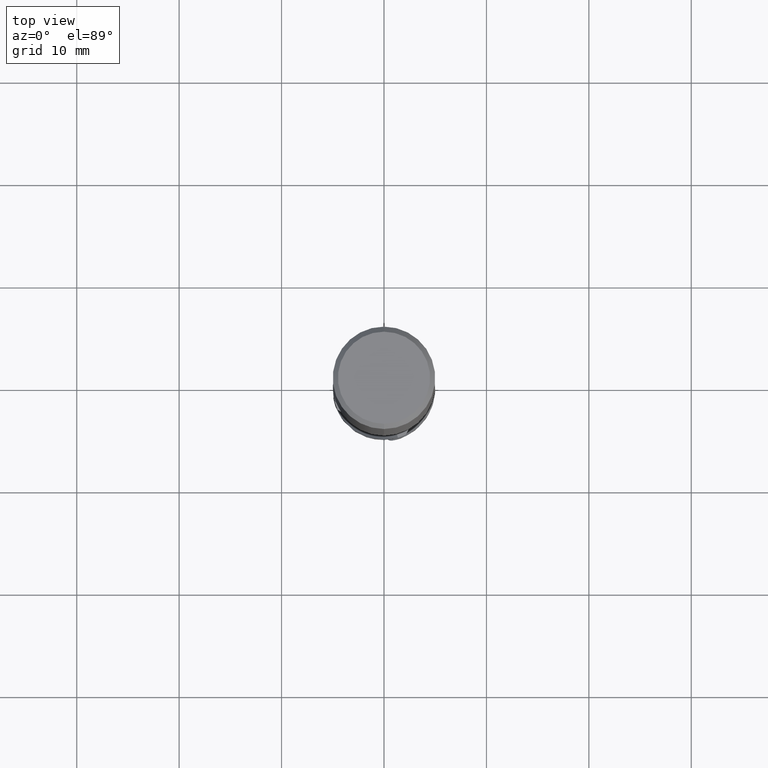
[diagram: clean part render]
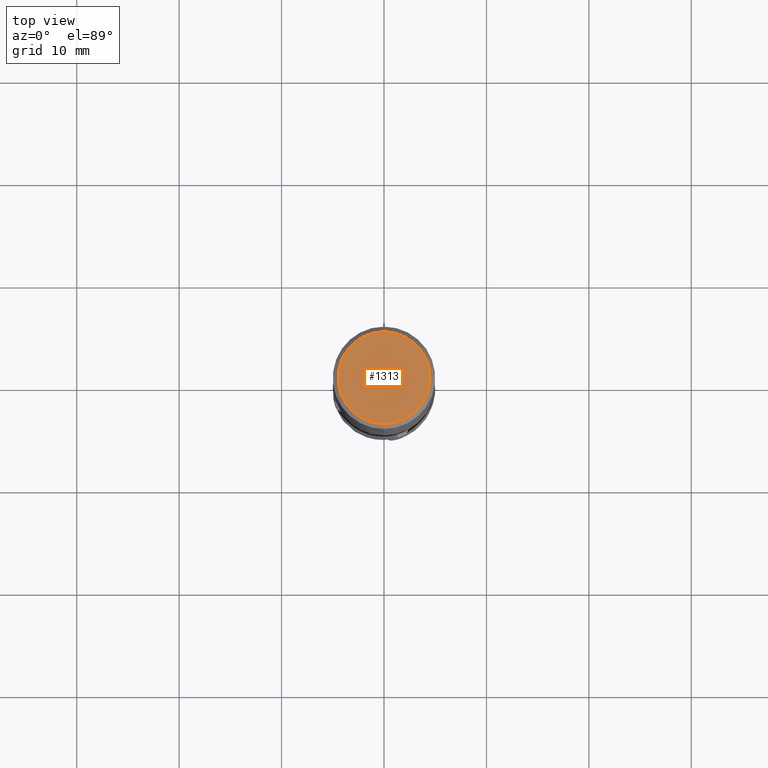
[diagram: same view with one face highlighted and labeled with its STEP entity id]
A machine part, top view. The second image highlights one B-rep face of the part: STEP entity #1313.
In plain terms, the highlighted planar face has unit normal (-0, 0, 1).
Its self-contained STEP definition (entity closure, byte-faithful):
#749=VERTEX_POINT('',#1751);
#833=EDGE_CURVE('',#749,#1059,#1845,.T.);
#1059=VERTEX_POINT('',#2093);
#1313=ADVANCED_FACE('',(#2362),#2363,.T.);
#1315=EDGE_CURVE('',#1059,#749,#2365,.T.);
#1751=CARTESIAN_POINT('',(5.5107285922007E-016,-4.5,0.0));
#1845=CIRCLE('',#4885,4.5);
#2093=CARTESIAN_POINT('',(0.0,4.5,0.0));
#2362=FACE_OUTER_BOUND('',#8147,.T.);
#2363=PLANE('',#8148);
#2365=CIRCLE('',#8151,4.5);
#4885=AXIS2_PLACEMENT_3D('',#9427,#9428,#9429);
#8147=EDGE_LOOP('',(#9878,#9879));
#8148=AXIS2_PLACEMENT_3D('',#9880,#9881,#9882);
#8151=AXIS2_PLACEMENT_3D('',#9883,#9884,#9885);
#9427=CARTESIAN_POINT('',(0.0,0.0,0.0));
#9428=DIRECTION('',(0.0,0.0,-1.0));
#9429=DIRECTION('',(0.0,1.0,0.0));
#9878=ORIENTED_EDGE('',*,*,#1315,.F.);
#9879=ORIENTED_EDGE('',*,*,#833,.F.);
#9880=CARTESIAN_POINT('',(0.0,2.25,0.0));
#9881=DIRECTION('',(-0.0,0.0,1.0));
#9882=DIRECTION('',(0.0,-1.0,0.0));
#9883=CARTESIAN_POINT('',(0.0,0.0,0.0));
#9884=DIRECTION('',(0.0,0.0,-1.0));
#9885=DIRECTION('',(0.0,1.0,0.0));